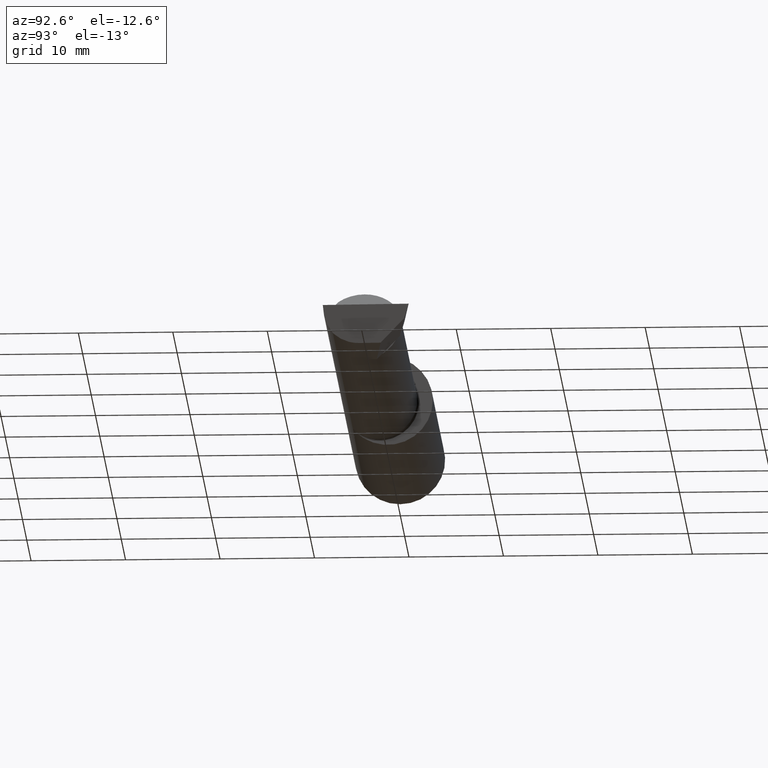
[diagram: clean part render]
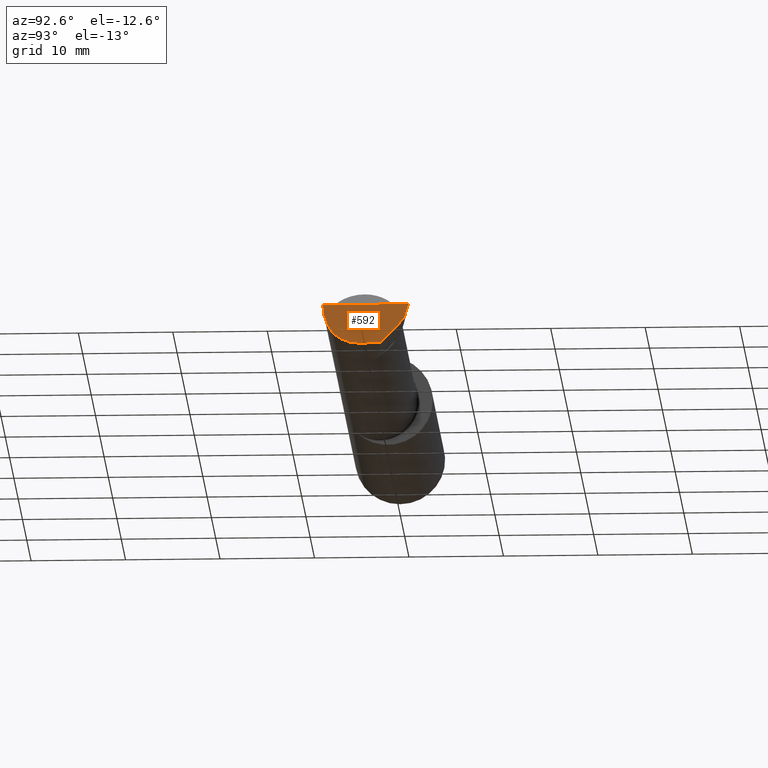
[diagram: same view with one face highlighted and labeled with its STEP entity id]
A machine part, auxiliary view. The second image highlights one B-rep face of the part: STEP entity #592.
In plain terms, the highlighted planar face has unit normal (-0.9922, 0.026, 0.1219).
Its self-contained STEP definition (entity closure, byte-faithful):
#3 =( BOUNDED_CURVE ( )  B_SPLINE_CURVE ( 3, ( #583, #493, #575, #405 ),
 .UNSPECIFIED., .F., .T. ) 
 B_SPLINE_CURVE_WITH_KNOTS ( ( 4, 4 ),
 ( 0.6791649766275665856, 1.360746882514762168 ),
 .UNSPECIFIED. ) 
 CURVE ( )  GEOMETRIC_REPRESENTATION_ITEM ( )  RATIONAL_B_SPLINE_CURVE ( ( 1.000000000000000000, 0.9616603987079550553, 0.9616603987079550553, 1.000000000000000000 ) ) 
 REPRESENTATION_ITEM ( '' )  );
#16 = VERTEX_POINT ( 'NONE', #198 ) ;
#43 = CARTESIAN_POINT ( 'NONE',  ( 2.977223734188808368, -0.1454917112299468074, -0.1180346748349050540 ) ) ;
#54 = CARTESIAN_POINT ( 'NONE',  ( 3.000000000000013323, 0.1706500000000293615, 9.155799222047003664E-14 ) ) ;
#57 =( BOUNDED_CURVE ( )  B_SPLINE_CURVE ( 3, ( #43, #587, #549, #282 ),
 .UNSPECIFIED., .F., .F. ) 
 B_SPLINE_CURVE_WITH_KNOTS ( ( 4, 4 ),
 ( 5.751779107031517846, 6.493234751459720400 ),
 .UNSPECIFIED. ) 
 CURVE ( )  GEOMETRIC_REPRESENTATION_ITEM ( )  RATIONAL_B_SPLINE_CURVE ( ( 1.000000000000000000, 0.9547092712975350226, 0.9547092712975350226, 1.000000000000000000 ) ) 
 REPRESENTATION_ITEM ( '' )  );
#66 = EDGE_CURVE ( 'NONE', #184, #16, #585, .T. ) ;
#101 = AXIS2_PLACEMENT_3D ( 'NONE', #313, #439, #112 ) ;
#104 = CARTESIAN_POINT ( 'NONE',  ( 2.992127980275562482, 0.1514633278254525761, -0.05999999999999999778 ) ) ;
#112 = DIRECTION ( 'NONE',  ( 0.1219104985252887768, 0.0000000000000000000, 0.9925410975618670362 ) ) ;
#115 = ORIENTED_EDGE ( 'NONE', *, *, #119, .T. ) ;
#119 = EDGE_CURVE ( 'NONE', #153, #142, #411, .T. ) ;
#127 = CARTESIAN_POINT ( 'NONE',  ( 3.000188977433813520, 0.1711105994646681117, 0.001440373173037378914 ) ) ;
#133 = EDGE_LOOP ( 'NONE', ( #239, #237, #388, #115, #404, #287 ) ) ;
#142 = VERTEX_POINT ( 'NONE', #54 ) ;
#153 = VERTEX_POINT ( 'NONE', #104 ) ;
#184 = VERTEX_POINT ( 'NONE', #381 ) ;
#198 = CARTESIAN_POINT ( 'NONE',  ( 2.974893613600465336, -0.03740000000000000269, -0.1600499999999999701 ) ) ;
#207 = PLANE ( 'NONE',  #101 ) ;
#218 = CARTESIAN_POINT ( 'NONE',  ( 2.990625440078233499, -0.1873499999999999888, -6.699231446134777283E-17 ) ) ;
#234 = CARTESIAN_POINT ( 'NONE',  ( 2.974910817315464584, -0.03674301662998782220, -0.1600499999999999701 ) ) ;
#237 = ORIENTED_EDGE ( 'NONE', *, *, #66, .F. ) ;
#239 = ORIENTED_EDGE ( 'NONE', *, *, #317, .T. ) ;
#247 = LINE ( 'NONE', #301, #385 ) ;
#282 = CARTESIAN_POINT ( 'NONE',  ( 2.974893613600465336, -0.03740000000000000269, -0.1600499999999999701 ) ) ;
#287 = ORIENTED_EDGE ( 'NONE', *, *, #591, .F. ) ;
#298 = FACE_OUTER_BOUND ( 'NONE', #133, .T. ) ;
#301 = CARTESIAN_POINT ( 'NONE',  ( 2.992483720199182518, 0.1538199878950237132, -0.05760614975163623475 ) ) ;
#313 = CARTESIAN_POINT ( 'NONE',  ( 2.972657716785286119, -0.1026153499216720943, -0.1643501480114536728 ) ) ;
#317 = EDGE_CURVE ( 'NONE', #322, #16, #57, .T. ) ;
#322 = VERTEX_POINT ( 'NONE', #331 ) ;
#325 = DIRECTION ( 'NONE',  ( 0.1240019227989395123, 0.3022330132596639518, 0.9451342385281308323 ) ) ;
#328 = EDGE_CURVE ( 'NONE', #184, #153, #247, .T. ) ;
#331 = CARTESIAN_POINT ( 'NONE',  ( 2.977223734188808368, -0.1454917112299468074, -0.1180346748349050540 ) ) ;
#338 = EDGE_CURVE ( 'NONE', #445, #142, #479, .T. ) ;
#342 = VECTOR ( 'NONE', #325, 39.37007874015748854 ) ;
#381 = CARTESIAN_POINT ( 'NONE',  ( 2.977259974483422056, 0.05296767626088472181, -0.1600499999999999701 ) ) ;
#385 = VECTOR ( 'NONE', #400, 39.37007874015748854 ) ;
#388 = ORIENTED_EDGE ( 'NONE', *, *, #328, .T. ) ;
#399 = DIRECTION ( 'NONE',  ( 0.02617694830787033883, 0.9996573249755572599, -4.076468941374972475E-18 ) ) ;
#400 = DIRECTION ( 'NONE',  ( 0.1053106618241836795, 0.6976485211320171409, 0.7086580314005209713 ) ) ;
#404 = ORIENTED_EDGE ( 'NONE', *, *, #338, .F. ) ;
#405 = CARTESIAN_POINT ( 'NONE',  ( 2.990625440078233499, -0.1873499999999999888, -6.699231446134777283E-17 ) ) ;
#411 = LINE ( 'NONE', #127, #342 ) ;
#439 = DIRECTION ( 'NONE',  ( -0.9922060308645472837, 0.02598182930469051036, 0.1218693434051533742 ) ) ;
#445 = VERTEX_POINT ( 'NONE', #218 ) ;
#479 = LINE ( 'NONE', #480, #495 ) ;
#480 = CARTESIAN_POINT ( 'NONE',  ( 2.988992440003205520, -0.2497117568972558599, -6.673801155297119022E-17 ) ) ;
#493 = CARTESIAN_POINT ( 'NONE',  ( 2.980648201915109485, -0.1728409665178087529, -0.08432347972837171690 ) ) ;
#495 = VECTOR ( 'NONE', #399, 39.37007874015748854 ) ;
#517 = DIRECTION ( 'NONE',  ( -0.02617694830787034577, -0.9996573249755572599, 0.0000000000000000000 ) ) ;
#549 = CARTESIAN_POINT ( 'NONE',  ( 2.973833329693935212, -0.07789060880782661123, -0.1600499999999999146 ) ) ;
#555 = VECTOR ( 'NONE', #517, 39.37007874015748854 ) ;
#575 = CARTESIAN_POINT ( 'NONE',  ( 2.985293537526804375, -0.1873500000000000443, -0.04340998088356425727 ) ) ;
#583 = CARTESIAN_POINT ( 'NONE',  ( 2.977223734188808368, -0.1454917112299468074, -0.1180346748349050540 ) ) ;
#585 = LINE ( 'NONE', #234, #555 ) ;
#587 = CARTESIAN_POINT ( 'NONE',  ( 2.974646882977779239, -0.1156304438478839430, -0.1453804992321580114 ) ) ;
#591 = EDGE_CURVE ( 'NONE', #322, #445, #3, .T. ) ;
#592 = ADVANCED_FACE ( 'NONE', ( #298 ), #207, .F. ) ;